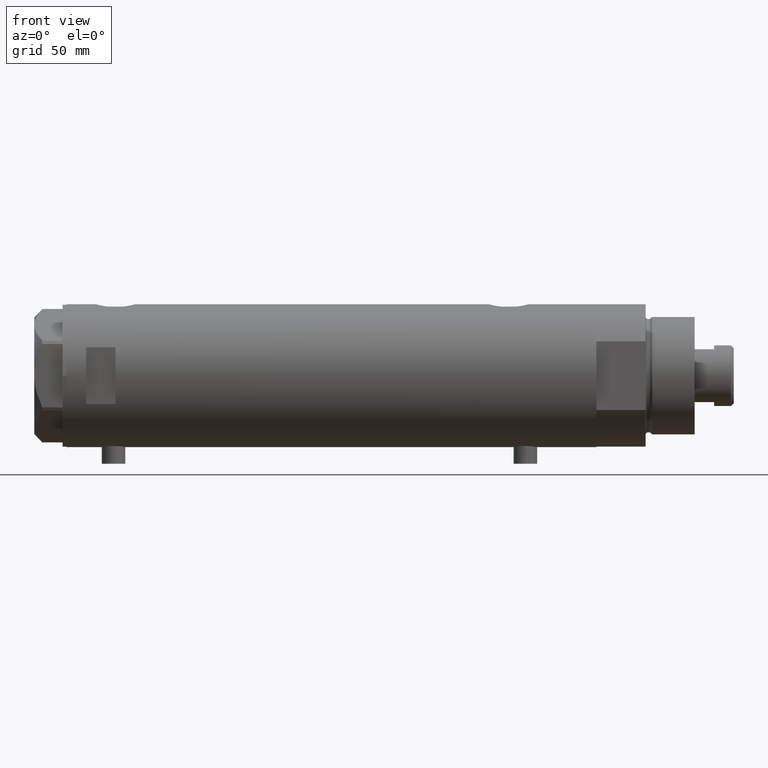
[diagram: clean part render]
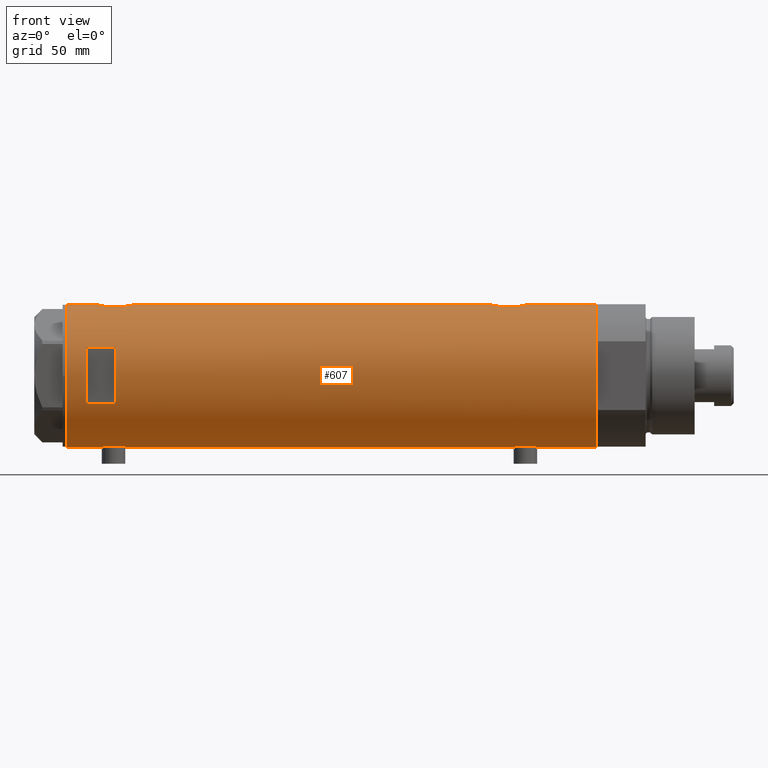
[diagram: same view with one face highlighted and labeled with its STEP entity id]
A machine part, front view. The second image highlights one B-rep face of the part: STEP entity #607.
In plain terms, the highlighted cylindrical surface (partial cylindrical patch) has radius 36.5 mm, axis along (-1, -0, 0).
Its self-contained STEP definition (entity closure, byte-faithful):
#4 = CARTESIAN_POINT ( 'NONE',  ( -36.39558535855674393, -2.764807686268001774, 105.7910588145438879 ) ) ;
#16 = CARTESIAN_POINT ( 'NONE',  ( -36.19666146462960654, -4.704890678739094945, -103.2342985951078447 ) ) ;
#28 = VERTEX_POINT ( 'NONE', #2754 ) ;
#36 = CARTESIAN_POINT ( 'NONE',  ( -36.39621039793029666, -2.776267550998806843, -93.48569246893222839 ) ) ;
#43 = CARTESIAN_POINT ( 'NONE',  ( 36.48988302519020266, -0.9927202255321166957, 120.3632698941130172 ) ) ;
#48 = CARTESIAN_POINT ( 'NONE',  ( -36.09582946723050867, -5.421573071064194060, 108.2639172162951553 ) ) ;
#55 = CARTESIAN_POINT ( 'NONE',  ( -36.49297138689434661, -0.8222528563518530786, -92.89066887946567874 ) ) ;
#61 = CARTESIAN_POINT ( 'NONE',  ( 0.000000000000000000, 0.000000000000000000, -135.4000000000000057 ) ) ;
#62 = CARTESIAN_POINT ( 'NONE',  ( 36.00092304812866217, -6.029438422680412302, 118.3930815557365008 ) ) ;
#64 = CARTESIAN_POINT ( 'NONE',  ( 0.000000000000000000, 0.000000000000000000, -135.4000000000000057 ) ) ;
#67 = CARTESIAN_POINT ( 'NONE',  ( -36.43335814606993495, -2.212659578761325463, 117.2487639916951139 ) ) ;
#79 = CARTESIAN_POINT ( 'NONE',  ( -36.44454782745417276, -2.020757099930494682, -93.18214135579002289 ) ) ;
#83 = CIRCLE ( 'NONE', #1838, 36.50000000000000000 ) ;
#101 = CARTESIAN_POINT ( 'NONE',  ( -36.50000000000000000, 1.603939656238031057E-15, -92.84999999999999432 ) ) ;
#108 = EDGE_CURVE ( 'NONE', #3220, #2364, #765, .T. ) ;
#110 = CARTESIAN_POINT ( 'NONE',  ( 35.29999999999999716, -9.282241108697837362, -94.32021504754762020 ) ) ;
#124 = VERTEX_POINT ( 'NONE', #3760 ) ;
#129 = CARTESIAN_POINT ( 'NONE',  ( -36.50000000000000000, 4.469960816887838430E-15, -135.4000000000000057 ) ) ;
#145 = VECTOR ( 'NONE', #1158, 1000.000000000000000 ) ;
#147 = EDGE_CURVE ( 'NONE', #323, #2364, #4387, .T. ) ;
#151 = CARTESIAN_POINT ( 'NONE',  ( 36.18850502651835654, -4.779575967213809840, -99.39779152890149305 ) ) ;
#155 = LINE ( 'NONE', #1636, #4261 ) ;
#161 = CARTESIAN_POINT ( 'NONE',  ( 35.29999999999999716, -9.282241108697837362, 106.6797849524523656 ) ) ;
#167 = CARTESIAN_POINT ( 'NONE',  ( 36.50000000000000000, 0.000000000000000000, 100.4000000000000057 ) ) ;
#192 = VERTEX_POINT ( 'NONE', #2430 ) ;
#198 = ORIENTED_EDGE ( 'NONE', *, *, #1806, .F. ) ;
#229 = CARTESIAN_POINT ( 'NONE',  ( 36.48960339336947101, -1.002724032967601708, 100.4377513402650379 ) ) ;
#234 = VECTOR ( 'NONE', #276, 1000.000000000000000 ) ;
#247 = DIRECTION ( 'NONE',  ( 0.000000000000000000, 0.000000000000000000, 1.000000000000000000 ) ) ;
#252 = CARTESIAN_POINT ( 'NONE',  ( 36.50000000000000000, 0.000000000000000000, 100.4000000000000057 ) ) ;
#276 = DIRECTION ( 'NONE',  ( 0.000000000000000000, 0.000000000000000000, 1.000000000000000000 ) ) ;
#284 = CARTESIAN_POINT ( 'NONE',  ( 35.29999999999999716, -9.282241108697837362, -86.87978495245235422 ) ) ;
#290 = EDGE_CURVE ( 'NONE', #3220, #3364, #2494, .T. ) ;
#299 = CARTESIAN_POINT ( 'NONE',  ( 36.29527920868844859, -3.886508670267145416, 101.1728372416913970 ) ) ;
#323 = VERTEX_POINT ( 'NONE', #2192 ) ;
#333 = CARTESIAN_POINT ( 'NONE',  ( 35.39807338191549491, -8.909271871950329214, -85.94919617267213141 ) ) ;
#342 = CARTESIAN_POINT ( 'NONE',  ( -36.50000000000000000, 4.469960816887838430E-15, -135.4000000000000057 ) ) ;
#346 = CARTESIAN_POINT ( 'NONE',  ( -36.46614432713124643, -1.622933015999963313, 105.3503340261315202 ) ) ;
#347 = CARTESIAN_POINT ( 'NONE',  ( -14.49137674618942739, -33.50000000000000000, 125.3999999999999773 ) ) ;
#351 = CARTESIAN_POINT ( 'NONE',  ( 36.50000000000000000, 0.000000000000000000, -135.4000000000000057 ) ) ;
#356 = DIRECTION ( 'NONE',  ( 0.000000000000000000, 0.000000000000000000, 1.000000000000000000 ) ) ;
#377 = CARTESIAN_POINT ( 'NONE',  ( 35.29999999999999716, -9.282241108697837362, -135.4000000000000057 ) ) ;
#380 = CARTESIAN_POINT ( 'NONE',  ( -36.09514898390870030, -5.426114745500164815, -95.97161347053859970 ) ) ;
#389 = CARTESIAN_POINT ( 'NONE',  ( 36.29582892817134621, -3.881628320031159873, 119.6293443453498782 ) ) ;
#394 = CARTESIAN_POINT ( 'NONE',  ( -36.19599073318030236, -4.702920041824403263, 115.5215383167658132 ) ) ;
#404 = CARTESIAN_POINT ( 'NONE',  ( -35.99659093586380010, -6.041447834568799635, -97.48577587985174375 ) ) ;
#412 = DIRECTION ( 'NONE',  ( 1.000000000000000000, 0.000000000000000000, 0.000000000000000000 ) ) ;
#413 = CARTESIAN_POINT ( 'NONE',  ( 36.41918031349423757, -2.473644131148923009, 120.1018834546319027 ) ) ;
#417 = CARTESIAN_POINT ( 'NONE',  ( -36.44621655743049615, -2.016281777336074832, 105.4701702330088438 ) ) ;
#423 = CARTESIAN_POINT ( 'NONE',  ( -35.98855750525641639, -6.088954600884530777, -100.5243022615016883 ) ) ;
#429 = CARTESIAN_POINT ( 'NONE',  ( 36.41856252531823657, -2.482507212621166470, -100.2995651284649909 ) ) ;
#447 = CARTESIAN_POINT ( 'NONE',  ( -36.44621655743049615, -2.016281777336074832, -105.0298297669911562 ) ) ;
#460 = CARTESIAN_POINT ( 'NONE',  ( -36.30107494031872051, -3.820993528321233068, 116.3630615353631015 ) ) ;
#498 = CARTESIAN_POINT ( 'NONE',  ( 0.000000000000000000, 0.000000000000000000, 110.3999999999999773 ) ) ;
#500 = CARTESIAN_POINT ( 'NONE',  ( -36.44454782745417276, -2.020757099930494682, 117.3178586442099913 ) ) ;
#521 = CARTESIAN_POINT ( 'NONE',  ( 35.52320828895289395, -8.411622242316134646, -96.09772865944610487 ) ) ;
#574 = CARTESIAN_POINT ( 'NONE',  ( 36.34184199234172041, -3.427106516421255744, 100.9925908631996663 ) ) ;
#579 = CARTESIAN_POINT ( 'NONE',  ( 36.21540437201188922, -4.554727782332258279, -81.69402370911372202 ) ) ;
#588 = ORIENTED_EDGE ( 'NONE', *, *, #2898, .F. ) ;
#596 = DIRECTION ( 'NONE',  ( 0.000000000000000000, 0.000000000000000000, 1.000000000000000000 ) ) ;
#599 = VECTOR ( 'NONE', #1744, 1000.000000000000000 ) ;
#607 = ADVANCED_FACE ( 'NONE', ( #696, #4184 ), #3840, .T. ) ;
#638 = CARTESIAN_POINT ( 'NONE',  ( 36.18674680775578167, -4.776679548204626258, -81.81107683068751157 ) ) ;
#662 = CARTESIAN_POINT ( 'NONE',  ( 35.52323553852023963, -8.411295122831250026, -85.10247607048908947 ) ) ;
#688 = CIRCLE ( 'NONE', #1716, 36.50000000000000000 ) ;
#696 = FACE_OUTER_BOUND ( 'NONE', #2554, .T. ) ;
#699 = CARTESIAN_POINT ( 'NONE',  ( -36.26692673949090562, -4.128477002029503851, 106.6900001256783526 ) ) ;
#720 = CARTESIAN_POINT ( 'NONE',  ( -35.96816095843705341, -6.208699946936198977, 110.5750362287220838 ) ) ;
#729 = CARTESIAN_POINT ( 'NONE',  ( 35.29999999999999716, -9.282241108697837362, -86.87978495245235422 ) ) ;
#735 = CARTESIAN_POINT ( 'NONE',  ( 36.50000000000000711, -0.4962708696651116913, 120.3999999999999915 ) ) ;
#739 = CARTESIAN_POINT ( 'NONE',  ( -36.06543684817881257, -5.617774235967367247, 114.1695444797170182 ) ) ;
#741 = VECTOR ( 'NONE', #4126, 1000.000000000000000 ) ;
#750 = CARTESIAN_POINT ( 'NONE',  ( -36.46614432713124643, -1.622933015999963313, -105.1496659738684798 ) ) ;
#757 = VERTEX_POINT ( 'NONE', #1603 ) ;
#765 = B_SPLINE_CURVE_WITH_KNOTS ( 'NONE', 3,
 ( #1396, #2385, #3007, #3740, #3432, #2337, #4437, #579, #638, #4478, #3054, #2311, #3386, #1353, #3031, #662, #333, #284 ),
 .UNSPECIFIED., .F., .F.,
 ( 4, 2, 2, 2, 2, 2, 2, 2, 4 ),
 ( 0.01190956515753145012, 0.01339852714138290227, 0.01488748912523435441, 0.01637645110908580656, 0.01712093210101153090, 0.01786541309293725871, 0.01935437507678870739, 0.02084333706064015260, 0.02382126102834301526 ),
 .UNSPECIFIED. ) ;
#774 = CARTESIAN_POINT ( 'NONE',  ( -36.01639592019625979, -5.922235714778421034, -97.09203197573086186 ) ) ;
#780 = CARTESIAN_POINT ( 'NONE',  ( 35.93373217836897737, -6.415110096330620237, 118.0870426635508892 ) ) ;
#784 = CARTESIAN_POINT ( 'NONE',  ( -36.49297138689434661, -0.8222528563518530786, 117.6093311205343781 ) ) ;
#804 = ORIENTED_EDGE ( 'NONE', *, *, #826, .F. ) ;
#808 = EDGE_CURVE ( 'NONE', #4404, #4069, #2194, .T. ) ;
#812 = CARTESIAN_POINT ( 'NONE',  ( 14.49137674618942739, -33.50000000000000000, -135.4000000000000057 ) ) ;
#814 = B_SPLINE_CURVE_WITH_KNOTS ( 'NONE', 3,
 ( #110, #2522, #521, #3925, #2901, #1912, #3524, #1538, #1125, #2159, #151, #4275, #2543, #429, #2838, #1886, #859, #841 ),
 .UNSPECIFIED., .F., .F.,
 ( 4, 2, 2, 2, 2, 2, 2, 2, 4 ),
 ( -0.01189883390545606531, -0.008924125429092034240, -0.008180448310001031675, -0.007436771190910029979, -0.005949416952728023983, -0.004462062714546017987, -0.002974708476364010257, -0.001487354238182005128, 1.734723475976807094E-18 ),
 .UNSPECIFIED. ) ;
#826 = EDGE_CURVE ( 'NONE', #757, #831, #2787, .T. ) ;
#831 = VERTEX_POINT ( 'NONE', #101 ) ;
#841 = CARTESIAN_POINT ( 'NONE',  ( 36.50000000000000000, 0.000000000000000000, -100.5999999999999801 ) ) ;
#859 = CARTESIAN_POINT ( 'NONE',  ( 36.50000000000000711, -0.5031001875915692700, -100.5999999999999943 ) ) ;
#864 = CARTESIAN_POINT ( 'NONE',  ( -36.21356728133255842, -4.566014386638764577, 115.6726266076474587 ) ) ;
#867 = CARTESIAN_POINT ( 'NONE',  ( 0.000000000000000000, 0.000000000000000000, 125.3999999999999773 ) ) ;
#911 = CARTESIAN_POINT ( 'NONE',  ( -36.50000000000000000, 4.469960493350315609E-15, 105.1499999999999915 ) ) ;
#930 = LINE ( 'NONE', #4393, #2471 ) ;
#1012 = EDGE_CURVE ( 'NONE', #3322, #2120, #930, .T. ) ;
#1020 = CARTESIAN_POINT ( 'NONE',  ( -36.01639592019625979, -5.922235714778421034, 113.4079680242691239 ) ) ;
#1036 = CARTESIAN_POINT ( 'NONE',  ( 36.21540437201188922, -4.554727782332258279, 119.3059762908862353 ) ) ;
#1060 = CARTESIAN_POINT ( 'NONE',  ( -35.99695583620881933, -6.039273428153905776, 109.7777555501224214 ) ) ;
#1066 = LINE ( 'NONE', #377, #2405 ) ;
#1069 = CARTESIAN_POINT ( 'NONE',  ( -35.98821803976956346, -6.090959022952117330, -97.68426116850579888 ) ) ;
#1080 = CARTESIAN_POINT ( 'NONE',  ( -36.01675918113430441, -5.920026275461277798, 109.3856044348210759 ) ) ;
#1089 = CARTESIAN_POINT ( 'NONE',  ( -36.36635911126388265, -3.125815113635437292, -104.5160560040790330 ) ) ;
#1098 = CARTESIAN_POINT ( 'NONE',  ( 36.12724769814495573, -5.207618053557754756, 118.9406412048846846 ) ) ;
#1125 = CARTESIAN_POINT ( 'NONE',  ( 36.00068527486601511, -6.030855700422090848, -98.59201327127351533 ) ) ;
#1138 = CARTESIAN_POINT ( 'NONE',  ( -36.35061318816141096, -3.303361544904982239, -104.4096404194302039 ) ) ;
#1156 = CARTESIAN_POINT ( 'NONE',  ( -36.16096637594732499, -4.968588355849258953, -102.9133449281775938 ) ) ;
#1158 = DIRECTION ( 'NONE',  ( 0.000000000000000000, 0.000000000000000000, 1.000000000000000000 ) ) ;
#1220 = DIRECTION ( 'NONE',  ( -0.000000000000000000, 0.000000000000000000, -1.000000000000000000 ) ) ;
#1221 = ORIENTED_EDGE ( 'NONE', *, *, #2808, .T. ) ;
#1296 = CARTESIAN_POINT ( 'NONE',  ( 35.93363298843768661, -6.415574104180976178, 102.7134852711111108 ) ) ;
#1308 = DIRECTION ( 'NONE',  ( 0.000000000000000000, 0.000000000000000000, 1.000000000000000000 ) ) ;
#1310 = EDGE_CURVE ( 'NONE', #28, #2567, #155, .T. ) ;
#1315 = DIRECTION ( 'NONE',  ( -1.000000000000000000, 0.000000000000000000, 0.000000000000000000 ) ) ;
#1338 = EDGE_CURVE ( 'NONE', #4014, #4404, #1894, .T. ) ;
#1353 = CARTESIAN_POINT ( 'NONE',  ( 35.79638309643555516, -7.141827709208434349, -83.58298073030449871 ) ) ;
#1373 = CARTESIAN_POINT ( 'NONE',  ( -35.96794010939611752, -6.209972807992079069, 112.2155554899135836 ) ) ;
#1396 = CARTESIAN_POINT ( 'NONE',  ( 36.50000000000000000, 4.344614706140975428E-19, -80.59999999999999432 ) ) ;
#1408 = ORIENTED_EDGE ( 'NONE', *, *, #147, .T. ) ;
#1418 = CARTESIAN_POINT ( 'NONE',  ( -36.02823773219768810, -5.849994928883552880, 109.1904489851435613 ) ) ;
#1427 = CARTESIAN_POINT ( 'NONE',  ( -36.09582946723050867, -5.421573071064194060, -102.2360827837048731 ) ) ;
#1440 = CARTESIAN_POINT ( 'NONE',  ( -36.50000000000000000, 4.469960816887838430E-15, 135.4000000000000057 ) ) ;
#1447 = CARTESIAN_POINT ( 'NONE',  ( -36.43335814606993495, -2.212659578761325463, -93.25123600830492876 ) ) ;
#1459 = CARTESIAN_POINT ( 'NONE',  ( -36.19666146462960654, -4.704890678739094945, 107.2657014048921553 ) ) ;
#1466 = CARTESIAN_POINT ( 'NONE',  ( -36.50000000000000000, 1.603939656238031057E-15, 117.6500000000000057 ) ) ;
#1489 = CARTESIAN_POINT ( 'NONE',  ( -36.50000000000000000, 1.603939656238031057E-15, -92.84999999999999432 ) ) ;
#1506 = B_SPLINE_CURVE_WITH_KNOTS ( 'NONE', 3,
 ( #3984, #4143, #2143, #346, #417, #3093, #4, #2490, #3842, #4474, #699, #1459, #3111, #48, #2822, #1418, #1080, #1060, #2445, #720, #2802, #3181, #1373, #3465, #3137, #1020, #2465, #739, #2400, #2118, #3493, #394, #864, #2924, #460, #4236, #3864, #67, #500, #4301, #2208, #784, #3530, #2844 ),
 .UNSPECIFIED., .F., .F.,
 ( 4, 2, 2, 2, 2, 2, 2, 2, 2, 2, 2, 2, 2, 2, 2, 2, 2, 2, 2, 2, 2, 4 ),
 ( 0.01957644481942643136, 0.02079966591703043266, 0.02202288701463443049, 0.02263449756343642941, 0.02324610811223842832, 0.02446932920984242615, 0.02569255030744642398, 0.02691577140505042529, 0.02752738195385242420, 0.02813899250265442659, 0.02936221360025846605, 0.03058543469786250205, 0.03119704524666452178, 0.03180865579546654498, 0.03303187689307057751, 0.03364348744187262152, 0.03425509799067465166, 0.03547831908827869807, 0.03670154018588274447, 0.03731315073468477461, 0.03792476128348679781, 0.03914798238109084422 ),
 .UNSPECIFIED. ) ;
#1514 = CARTESIAN_POINT ( 'NONE',  ( -35.96794010939611752, -6.209972807992079069, -98.28444451008645899 ) ) ;
#1532 = EDGE_CURVE ( 'NONE', #124, #4034, #1066, .T. ) ;
#1538 = CARTESIAN_POINT ( 'NONE',  ( 35.93363298843768661, -6.415574104180976178, -98.28651472888890339 ) ) ;
#1571 = CARTESIAN_POINT ( 'NONE',  ( 35.52320828895289395, -8.411622242316134646, 104.9022713405538667 ) ) ;
#1603 = CARTESIAN_POINT ( 'NONE',  ( -36.50000000000000000, 4.469960493350315609E-15, -105.3499999999999943 ) ) ;
#1623 = ORIENTED_EDGE ( 'NONE', *, *, #3587, .F. ) ;
#1636 = CARTESIAN_POINT ( 'NONE',  ( 36.50000000000000000, 0.000000000000000000, -135.4000000000000057 ) ) ;
#1665 = CARTESIAN_POINT ( 'NONE',  ( 35.79656810172926384, -7.133411935499478496, 103.3874512144232511 ) ) ;
#1716 = AXIS2_PLACEMENT_3D ( 'NONE', #867, #1220, #3311 ) ;
#1720 = EDGE_CURVE ( 'NONE', #4368, #3322, #1506, .T. ) ;
#1744 = DIRECTION ( 'NONE',  ( 0.000000000000000000, 0.000000000000000000, 1.000000000000000000 ) ) ;
#1745 = CARTESIAN_POINT ( 'NONE',  ( 35.29999999999999716, -9.282241108697837362, 114.1202150475476316 ) ) ;
#1779 = CARTESIAN_POINT ( 'NONE',  ( -36.06543684817881257, -5.617774235967367247, -96.33045552028301017 ) ) ;
#1786 = CARTESIAN_POINT ( 'NONE',  ( 35.79638309643555516, -7.141827709208434349, 117.4170192696954445 ) ) ;
#1799 = CARTESIAN_POINT ( 'NONE',  ( -36.36656776002988778, -3.137002187003158582, -93.67863590726369694 ) ) ;
#1806 = EDGE_CURVE ( 'NONE', #831, #4368, #2621, .T. ) ;
#1816 = CARTESIAN_POINT ( 'NONE',  ( -36.06605150775667568, -5.613853192123348101, -101.8776568827254465 ) ) ;
#1838 = AXIS2_PLACEMENT_3D ( 'NONE', #61, #3773, #412 ) ;
#1845 = CARTESIAN_POINT ( 'NONE',  ( -36.02782481185206365, -5.852531070448506512, -96.89722991047811718 ) ) ;
#1878 = EDGE_CURVE ( 'NONE', #2120, #4048, #2834, .T. ) ;
#1886 = CARTESIAN_POINT ( 'NONE',  ( 36.48960339336947101, -1.002724032967601708, -100.5622486597349621 ) ) ;
#1894 = CIRCLE ( 'NONE', #2970, 36.50000000000000000 ) ;
#1912 = CARTESIAN_POINT ( 'NONE',  ( 35.79656810172926384, -7.133411935499478496, -97.61254878557674886 ) ) ;
#1959 = CARTESIAN_POINT ( 'NONE',  ( 35.29999999999999716, -9.282241108697837362, 114.1202150475476316 ) ) ;
#2000 = ORIENTED_EDGE ( 'NONE', *, *, #1532, .T. ) ;
#2012 = CARTESIAN_POINT ( 'NONE',  ( 14.49137674618942739, -33.50000000000000000, 125.3999999999999773 ) ) ;
#2044 = AXIS2_PLACEMENT_3D ( 'NONE', #4315, #2565, #2263 ) ;
#2061 = CARTESIAN_POINT ( 'NONE',  ( -14.49137674618942739, -33.50000000000000000, -135.4000000000000057 ) ) ;
#2102 = CARTESIAN_POINT ( 'NONE',  ( -36.49315367594273596, -0.8144497809045447845, -105.3103978555474924 ) ) ;
#2118 = CARTESIAN_POINT ( 'NONE',  ( -36.14410773716529235, -5.085921866747754372, 115.0383587842047035 ) ) ;
#2120 = VERTEX_POINT ( 'NONE', #1440 ) ;
#2137 = CARTESIAN_POINT ( 'NONE',  ( 36.50000000000000000, 4.344614706140975428E-19, 120.3999999999999915 ) ) ;
#2143 = CARTESIAN_POINT ( 'NONE',  ( -36.49315367594273596, -0.8144497809045447845, 105.1896021444524507 ) ) ;
#2150 = CARTESIAN_POINT ( 'NONE',  ( -36.16125812922425098, -4.962923794285024393, -95.29553914089241573 ) ) ;
#2151 = ORIENTED_EDGE ( 'NONE', *, *, #3011, .F. ) ;
#2159 = CARTESIAN_POINT ( 'NONE',  ( 36.12792682573228831, -5.214735277442335004, -99.14693117988699100 ) ) ;
#2163 = VERTEX_POINT ( 'NONE', #347 ) ;
#2168 = ORIENTED_EDGE ( 'NONE', *, *, #1012, .F. ) ;
#2173 = CARTESIAN_POINT ( 'NONE',  ( -36.14410773716529235, -5.085921866747754372, -95.46164121579526807 ) ) ;
#2188 = CARTESIAN_POINT ( 'NONE',  ( 36.50000000000000000, 0.000000000000000000, -100.5999999999999801 ) ) ;
#2192 = CARTESIAN_POINT ( 'NONE',  ( 35.29999999999999716, -9.282241108697837362, -94.32021504754762020 ) ) ;
#2194 = LINE ( 'NONE', #812, #2248 ) ;
#2208 = CARTESIAN_POINT ( 'NONE',  ( -36.47262891311153510, -1.427622242603855396, 117.4882462921170259 ) ) ;
#2241 = ORIENTED_EDGE ( 'NONE', *, *, #808, .F. ) ;
#2248 = VECTOR ( 'NONE', #356, 1000.000000000000000 ) ;
#2263 = DIRECTION ( 'NONE',  ( 1.000000000000000000, 0.000000000000000000, 0.000000000000000000 ) ) ;
#2296 = ORIENTED_EDGE ( 'NONE', *, *, #1878, .F. ) ;
#2303 = CARTESIAN_POINT ( 'NONE',  ( 36.50000000000000711, -0.5031001875915692700, 100.4000000000000341 ) ) ;
#2311 = CARTESIAN_POINT ( 'NONE',  ( 36.00092304812866217, -6.029438422680412302, -82.60691844426345654 ) ) ;
#2327 = CARTESIAN_POINT ( 'NONE',  ( 36.50000000000000000, 0.000000000000000000, 135.4000000000000057 ) ) ;
#2337 = CARTESIAN_POINT ( 'NONE',  ( 36.34247810649306132, -3.420510937483959513, -81.19013481598273074 ) ) ;
#2364 = VERTEX_POINT ( 'NONE', #729 ) ;
#2372 = CARTESIAN_POINT ( 'NONE',  ( 14.49137674618942739, -33.50000000000000000, 110.3999999999999773 ) ) ;
#2377 = CARTESIAN_POINT ( 'NONE',  ( 36.00068527486601511, -6.030855700422090848, 102.4079867287264705 ) ) ;
#2385 = CARTESIAN_POINT ( 'NONE',  ( 36.50000000000000711, -0.4962708696651116913, -80.60000000000000853 ) ) ;
#2389 = B_SPLINE_CURVE_WITH_KNOTS ( 'NONE', 3,
 ( #161, #4282, #1571, #2395, #4075, #1665, #4377, #1296, #2377, #2735, #4356, #299, #574, #3750, #4046, #229, #2303, #252 ),
 .UNSPECIFIED., .F., .F.,
 ( 4, 2, 2, 2, 2, 2, 2, 2, 4 ),
 ( -0.01189883390545606531, -0.008924125429092034240, -0.008180448310001031675, -0.007436771190910029979, -0.005949416952728023983, -0.004462062714546017987, -0.002974708476364010257, -0.001487354238182005128, 1.734723475976807094E-18 ),
 .UNSPECIFIED. ) ;
#2390 = EDGE_LOOP ( 'NONE', ( #3460, #1623, #4409, #2241 ) ) ;
#2395 = CARTESIAN_POINT ( 'NONE',  ( 35.69273631926343882, -7.635692914629149008, 103.9379980434851234 ) ) ;
#2400 = CARTESIAN_POINT ( 'NONE',  ( -36.09514898390870030, -5.426114745500164815, 114.5283865294613719 ) ) ;
#2405 = VECTOR ( 'NONE', #2452, 1000.000000000000000 ) ;
#2420 = CARTESIAN_POINT ( 'NONE',  ( 35.72583162417570435, -7.484316398521980496, 117.0504264371949716 ) ) ;
#2430 = CARTESIAN_POINT ( 'NONE',  ( 36.50000000000000000, 4.344614706140975428E-19, 120.3999999999999915 ) ) ;
#2445 = CARTESIAN_POINT ( 'NONE',  ( -35.98855750525641639, -6.088954600884530777, 109.9756977384983543 ) ) ;
#2452 = DIRECTION ( 'NONE',  ( 0.000000000000000000, 0.000000000000000000, 1.000000000000000000 ) ) ;
#2455 = CARTESIAN_POINT ( 'NONE',  ( -36.26616882068471170, -4.135065845178865551, -94.39584944059907912 ) ) ;
#2465 = CARTESIAN_POINT ( 'NONE',  ( -36.02782481185206365, -5.852531070448506512, 113.6027700895219112 ) ) ;
#2471 = VECTOR ( 'NONE', #1308, 1000.000000000000000 ) ;
#2472 = CARTESIAN_POINT ( 'NONE',  ( -36.40915499150419521, -2.580495338846545472, -104.7960501335547860 ) ) ;
#2483 = CARTESIAN_POINT ( 'NONE',  ( 36.18674680775578167, -4.776679548204626258, 119.1889231693124742 ) ) ;
#2490 = CARTESIAN_POINT ( 'NONE',  ( -36.36635911126388265, -3.125815113635437292, 105.9839439959209955 ) ) ;
#2494 = LINE ( 'NONE', #351, #3824 ) ;
#2499 = CARTESIAN_POINT ( 'NONE',  ( -36.30176144752229561, -3.814344296723636951, -104.0680170195025624 ) ) ;
#2509 = DIRECTION ( 'NONE',  ( 0.000000000000000000, 0.000000000000000000, 1.000000000000000000 ) ) ;
#2522 = CARTESIAN_POINT ( 'NONE',  ( 35.39794035667548400, -8.909777761736840773, -95.24954159089452332 ) ) ;
#2539 = AXIS2_PLACEMENT_3D ( 'NONE', #64, #2509, #3447 ) ;
#2543 = CARTESIAN_POINT ( 'NONE',  ( 36.34184199234172041, -3.427106516421255744, -100.0074091368003337 ) ) ;
#2554 = EDGE_LOOP ( 'NONE', ( #588, #1221, #2631, #2151, #1408, #3067, #3442, #3628, #2000, #3274, #4082, #2296, #2168, #3744, #198, #804 ) ) ;
#2565 = DIRECTION ( 'NONE',  ( 0.000000000000000000, 0.000000000000000000, 1.000000000000000000 ) ) ;
#2567 = VERTEX_POINT ( 'NONE', #2188 ) ;
#2621 = LINE ( 'NONE', #3597, #145 ) ;
#2631 = ORIENTED_EDGE ( 'NONE', *, *, #1310, .T. ) ;
#2666 = LINE ( 'NONE', #2061, #4062 ) ;
#2735 = CARTESIAN_POINT ( 'NONE',  ( 36.12792682573228831, -5.214735277442335004, 101.8530688201130090 ) ) ;
#2754 = CARTESIAN_POINT ( 'NONE',  ( 36.50000000000000000, 0.000000000000000000, -135.4000000000000057 ) ) ;
#2761 = CARTESIAN_POINT ( 'NONE',  ( 35.29999999999999716, -9.282241108697837362, -135.4000000000000057 ) ) ;
#2787 = B_SPLINE_CURVE_WITH_KNOTS ( 'NONE', 3,
 ( #4244, #4199, #2102, #750, #447, #2472, #3122, #1089, #1138, #2499, #3538, #16, #1156, #1427, #1816, #2790, #4154, #3850, #423, #3805, #3826, #3478, #1514, #1069, #404, #774, #1845, #1779, #380, #2173, #2150, #3517, #3145, #2455, #3217, #1799, #36, #1447, #79, #3190, #2810, #55, #3168, #1489 ),
 .UNSPECIFIED., .F., .F.,
 ( 4, 2, 2, 2, 2, 2, 2, 2, 2, 2, 2, 2, 2, 2, 2, 2, 2, 2, 2, 2, 2, 4 ),
 ( 0.01957644481942643136, 0.02079966591703043266, 0.02202288701463443049, 0.02263449756343642941, 0.02324610811223842832, 0.02446932920984242615, 0.02569255030744642398, 0.02691577140505042529, 0.02752738195385242420, 0.02813899250265442659, 0.02936221360025846605, 0.03058543469786250205, 0.03119704524666452178, 0.03180865579546654498, 0.03303187689307057751, 0.03364348744187262152, 0.03425509799067465166, 0.03547831908827869807, 0.03670154018588274447, 0.03731315073468477461, 0.03792476128348679781, 0.03914798238109084422 ),
 .UNSPECIFIED. ) ;
#2790 = CARTESIAN_POINT ( 'NONE',  ( -36.02823773219768810, -5.849994928883552880, -101.3095510148563960 ) ) ;
#2802 = CARTESIAN_POINT ( 'NONE',  ( -35.96095902952617251, -6.249754054240900913, 110.9834123457953012 ) ) ;
#2808 = EDGE_CURVE ( 'NONE', #2998, #28, #83, .T. ) ;
#2810 = CARTESIAN_POINT ( 'NONE',  ( -36.47262891311153510, -1.427622242603855396, -93.01175370788300256 ) ) ;
#2822 = CARTESIAN_POINT ( 'NONE',  ( -36.06605150775667568, -5.613853192123348101, 108.6223431172745961 ) ) ;
#2834 = CIRCLE ( 'NONE', #2044, 36.50000000000000000 ) ;
#2838 = CARTESIAN_POINT ( 'NONE',  ( 36.44881677724178104, -1.995085670027227032, -100.4118034536946169 ) ) ;
#2840 = CARTESIAN_POINT ( 'NONE',  ( 35.39807338191549491, -8.909271871950329214, 115.0508038273278402 ) ) ;
#2844 = CARTESIAN_POINT ( 'NONE',  ( -36.50000000000000000, 1.603939656238031057E-15, 117.6500000000000057 ) ) ;
#2898 = EDGE_CURVE ( 'NONE', #2998, #757, #3444, .T. ) ;
#2901 = CARTESIAN_POINT ( 'NONE',  ( 35.72742963626381396, -7.471989379615407323, -97.25062260412774151 ) ) ;
#2924 = CARTESIAN_POINT ( 'NONE',  ( -36.26616882068471170, -4.135065845178865551, 116.1041505594009635 ) ) ;
#2970 = AXIS2_PLACEMENT_3D ( 'NONE', #498, #247, #1315 ) ;
#2998 = VERTEX_POINT ( 'NONE', #129 ) ;
#3007 = CARTESIAN_POINT ( 'NONE',  ( 36.48988302519020266, -0.9927202255321166957, -80.63673010588695433 ) ) ;
#3011 = EDGE_CURVE ( 'NONE', #323, #2567, #814, .T. ) ;
#3031 = CARTESIAN_POINT ( 'NONE',  ( 35.72583162417570435, -7.484316398521980496, -83.94957356280495731 ) ) ;
#3054 = CARTESIAN_POINT ( 'NONE',  ( 36.09633718678917802, -5.417295330713078449, -82.19085132654787174 ) ) ;
#3067 = ORIENTED_EDGE ( 'NONE', *, *, #108, .F. ) ;
#3093 = CARTESIAN_POINT ( 'NONE',  ( -36.40915499150419521, -2.580495338846545472, 105.7039498664452566 ) ) ;
#3111 = CARTESIAN_POINT ( 'NONE',  ( -36.16096637594732499, -4.968588355849258953, 107.5866550718223920 ) ) ;
#3122 = CARTESIAN_POINT ( 'NONE',  ( -36.39558535855674393, -2.764807686268001774, -104.7089411854560979 ) ) ;
#3137 = CARTESIAN_POINT ( 'NONE',  ( -35.99659093586380010, -6.041447834568799635, 113.0142241201482420 ) ) ;
#3145 = CARTESIAN_POINT ( 'NONE',  ( -36.21356728133255842, -4.566014386638764577, -94.82737339235254126 ) ) ;
#3156 = CARTESIAN_POINT ( 'NONE',  ( 35.52323553852023963, -8.411295122831250026, 115.8975239295108253 ) ) ;
#3168 = CARTESIAN_POINT ( 'NONE',  ( -36.50000000000001421, -0.4136690418839317762, -92.85000000000000853 ) ) ;
#3181 = CARTESIAN_POINT ( 'NONE',  ( -35.96087392089862789, -6.250243747806517369, 111.8091749077618289 ) ) ;
#3188 = B_SPLINE_CURVE_WITH_KNOTS ( 'NONE', 3,
 ( #2137, #735, #43, #3508, #413, #3490, #389, #1036, #2483, #1098, #4468, #62, #780, #1786, #2420, #3156, #2840, #1745 ),
 .UNSPECIFIED., .F., .F.,
 ( 4, 2, 2, 2, 2, 2, 2, 2, 4 ),
 ( 0.01190956515753145012, 0.01339852714138290227, 0.01488748912523435441, 0.01637645110908580656, 0.01712093210101153090, 0.01786541309293725871, 0.01935437507678870739, 0.02084333706064015260, 0.02382126102834301526 ),
 .UNSPECIFIED. ) ;
#3190 = CARTESIAN_POINT ( 'NONE',  ( -36.46417279006304568, -1.628689148039109247, -93.06246061306185879 ) ) ;
#3217 = CARTESIAN_POINT ( 'NONE',  ( -36.30107494031872051, -3.820993528321233068, -94.13693846463692694 ) ) ;
#3220 = VERTEX_POINT ( 'NONE', #3994 ) ;
#3274 = ORIENTED_EDGE ( 'NONE', *, *, #4091, .F. ) ;
#3311 = DIRECTION ( 'NONE',  ( 1.000000000000000000, 0.000000000000000000, 0.000000000000000000 ) ) ;
#3322 = VERTEX_POINT ( 'NONE', #1466 ) ;
#3364 = VERTEX_POINT ( 'NONE', #167 ) ;
#3386 = CARTESIAN_POINT ( 'NONE',  ( 35.93373217836897737, -6.415110096330620237, -82.91295733644905397 ) ) ;
#3432 = CARTESIAN_POINT ( 'NONE',  ( 36.41918031349423757, -2.473644131148923009, -80.89811654536808305 ) ) ;
#3442 = ORIENTED_EDGE ( 'NONE', *, *, #290, .T. ) ;
#3444 = LINE ( 'NONE', #342, #599 ) ;
#3447 = DIRECTION ( 'NONE',  ( 1.000000000000000000, 0.000000000000000000, 0.000000000000000000 ) ) ;
#3460 = ORIENTED_EDGE ( 'NONE', *, *, #1338, .F. ) ;
#3465 = CARTESIAN_POINT ( 'NONE',  ( -35.98821803976956346, -6.090959022952117330, 112.8157388314941869 ) ) ;
#3478 = CARTESIAN_POINT ( 'NONE',  ( -35.96087392089862789, -6.250243747806517369, -98.69082509223817112 ) ) ;
#3490 = CARTESIAN_POINT ( 'NONE',  ( 36.34247810649306132, -3.420510937483959513, 119.8098651840172693 ) ) ;
#3493 = CARTESIAN_POINT ( 'NONE',  ( -36.16125812922425098, -4.962923794285024393, 115.2044608591076269 ) ) ;
#3508 = CARTESIAN_POINT ( 'NONE',  ( 36.44931971524465553, -1.985988150549293341, 120.2136686053176220 ) ) ;
#3517 = CARTESIAN_POINT ( 'NONE',  ( -36.19599073318030236, -4.702920041824403263, -94.97846168323421523 ) ) ;
#3524 = CARTESIAN_POINT ( 'NONE',  ( 35.83108131285856501, -6.958268797611358636, -97.78630783372824453 ) ) ;
#3530 = CARTESIAN_POINT ( 'NONE',  ( -36.50000000000001421, -0.4136690418839317762, 117.6500000000000341 ) ) ;
#3538 = CARTESIAN_POINT ( 'NONE',  ( -36.26692673949090562, -4.128477002029503851, -103.8099998743216474 ) ) ;
#3587 = EDGE_CURVE ( 'NONE', #2163, #4014, #2666, .T. ) ;
#3597 = CARTESIAN_POINT ( 'NONE',  ( -36.50000000000000000, 4.469960816887838430E-15, -135.4000000000000057 ) ) ;
#3628 = ORIENTED_EDGE ( 'NONE', *, *, #3965, .F. ) ;
#3731 = CARTESIAN_POINT ( 'NONE',  ( 36.50000000000000000, 0.000000000000000000, -135.4000000000000057 ) ) ;
#3740 = CARTESIAN_POINT ( 'NONE',  ( 36.44931971524465553, -1.985988150549293341, -80.78633139468232116 ) ) ;
#3744 = ORIENTED_EDGE ( 'NONE', *, *, #1720, .F. ) ;
#3750 = CARTESIAN_POINT ( 'NONE',  ( 36.41856252531823657, -2.482507212621166470, 100.7004348715349380 ) ) ;
#3760 = CARTESIAN_POINT ( 'NONE',  ( 35.29999999999999716, -9.282241108697837362, 106.6797849524523656 ) ) ;
#3773 = DIRECTION ( 'NONE',  ( 0.000000000000000000, 0.000000000000000000, 1.000000000000000000 ) ) ;
#3805 = CARTESIAN_POINT ( 'NONE',  ( -35.96816095843705341, -6.208699946936198977, -99.92496377127785934 ) ) ;
#3824 = VECTOR ( 'NONE', #3847, 1000.000000000000000 ) ;
#3826 = CARTESIAN_POINT ( 'NONE',  ( -35.96095902952617251, -6.249754054240900913, -99.51658765420468455 ) ) ;
#3840 = CYLINDRICAL_SURFACE ( 'NONE', #2539, 36.50000000000000000 ) ;
#3842 = CARTESIAN_POINT ( 'NONE',  ( -36.35061318816141096, -3.303361544904982239, 106.0903595805698245 ) ) ;
#3847 = DIRECTION ( 'NONE',  ( 0.000000000000000000, 0.000000000000000000, 1.000000000000000000 ) ) ;
#3850 = CARTESIAN_POINT ( 'NONE',  ( -35.99695583620881933, -6.039273428153905776, -100.7222444498775502 ) ) ;
#3860 = EDGE_CURVE ( 'NONE', #4069, #2163, #688, .T. ) ;
#3864 = CARTESIAN_POINT ( 'NONE',  ( -36.39621039793029666, -2.776267550998806843, 117.0143075310677716 ) ) ;
#3925 = CARTESIAN_POINT ( 'NONE',  ( 35.69273631926343882, -7.635692914629149008, -97.06200195651487661 ) ) ;
#3965 = EDGE_CURVE ( 'NONE', #124, #3364, #2389, .T. ) ;
#3984 = CARTESIAN_POINT ( 'NONE',  ( -36.50000000000000000, 4.469960493350315609E-15, 105.1499999999999915 ) ) ;
#3994 = CARTESIAN_POINT ( 'NONE',  ( 36.50000000000000000, 4.344614706140975428E-19, -80.59999999999999432 ) ) ;
#4001 = EDGE_CURVE ( 'NONE', #192, #4048, #4449, .T. ) ;
#4014 = VERTEX_POINT ( 'NONE', #4096 ) ;
#4034 = VERTEX_POINT ( 'NONE', #1959 ) ;
#4046 = CARTESIAN_POINT ( 'NONE',  ( 36.44881677724178104, -1.995085670027227032, 100.5881965463053263 ) ) ;
#4048 = VERTEX_POINT ( 'NONE', #2327 ) ;
#4062 = VECTOR ( 'NONE', #4458, 1000.000000000000000 ) ;
#4069 = VERTEX_POINT ( 'NONE', #2012 ) ;
#4075 = CARTESIAN_POINT ( 'NONE',  ( 35.72742963626381396, -7.471989379615407323, 103.7493773958722585 ) ) ;
#4082 = ORIENTED_EDGE ( 'NONE', *, *, #4001, .T. ) ;
#4091 = EDGE_CURVE ( 'NONE', #192, #4034, #3188, .T. ) ;
#4096 = CARTESIAN_POINT ( 'NONE',  ( -14.49137674618942739, -33.50000000000000000, 110.3999999999999773 ) ) ;
#4126 = DIRECTION ( 'NONE',  ( 0.000000000000000000, 0.000000000000000000, 1.000000000000000000 ) ) ;
#4143 = CARTESIAN_POINT ( 'NONE',  ( -36.49999999999999289, -0.4082012689449562859, 105.1500000000000057 ) ) ;
#4154 = CARTESIAN_POINT ( 'NONE',  ( -36.01675918113430441, -5.920026275461277798, -101.1143955651789383 ) ) ;
#4184 = FACE_BOUND ( 'NONE', #2390, .T. ) ;
#4199 = CARTESIAN_POINT ( 'NONE',  ( -36.49999999999999289, -0.4082012689449562859, -105.3499999999999943 ) ) ;
#4236 = CARTESIAN_POINT ( 'NONE',  ( -36.36656776002988778, -3.137002187003158582, 116.8213640927363315 ) ) ;
#4244 = CARTESIAN_POINT ( 'NONE',  ( -36.50000000000000000, 4.469960493350315609E-15, -105.3499999999999943 ) ) ;
#4261 = VECTOR ( 'NONE', #596, 1000.000000000000000 ) ;
#4275 = CARTESIAN_POINT ( 'NONE',  ( 36.29527920868844859, -3.886508670267145416, -99.82716275830860297 ) ) ;
#4282 = CARTESIAN_POINT ( 'NONE',  ( 35.39794035667548400, -8.909777761736840773, 105.7504584091054767 ) ) ;
#4301 = CARTESIAN_POINT ( 'NONE',  ( -36.46417279006304568, -1.628689148039109247, 117.4375393869382123 ) ) ;
#4315 = CARTESIAN_POINT ( 'NONE',  ( 0.000000000000000000, 0.000000000000000000, 135.4000000000000057 ) ) ;
#4356 = CARTESIAN_POINT ( 'NONE',  ( 36.18850502651835654, -4.779575967213809840, 101.6022084710984501 ) ) ;
#4368 = VERTEX_POINT ( 'NONE', #911 ) ;
#4377 = CARTESIAN_POINT ( 'NONE',  ( 35.83108131285856501, -6.958268797611358636, 103.2136921662717697 ) ) ;
#4387 = LINE ( 'NONE', #2761, #741 ) ;
#4393 = CARTESIAN_POINT ( 'NONE',  ( -36.50000000000000000, 4.469960816887838430E-15, -135.4000000000000057 ) ) ;
#4404 = VERTEX_POINT ( 'NONE', #2372 ) ;
#4409 = ORIENTED_EDGE ( 'NONE', *, *, #3860, .F. ) ;
#4437 = CARTESIAN_POINT ( 'NONE',  ( 36.29582892817134621, -3.881628320031159873, -81.37065565465007921 ) ) ;
#4449 = LINE ( 'NONE', #3731, #234 ) ;
#4458 = DIRECTION ( 'NONE',  ( -0.000000000000000000, -0.000000000000000000, -1.000000000000000000 ) ) ;
#4468 = CARTESIAN_POINT ( 'NONE',  ( 36.09633718678917802, -5.417295330713078449, 118.8091486734521141 ) ) ;
#4474 = CARTESIAN_POINT ( 'NONE',  ( -36.30176144752229561, -3.814344296723636951, 106.4319829804974518 ) ) ;
#4478 = CARTESIAN_POINT ( 'NONE',  ( 36.12724769814495573, -5.207618053557754756, -82.05935879511534381 ) ) ;